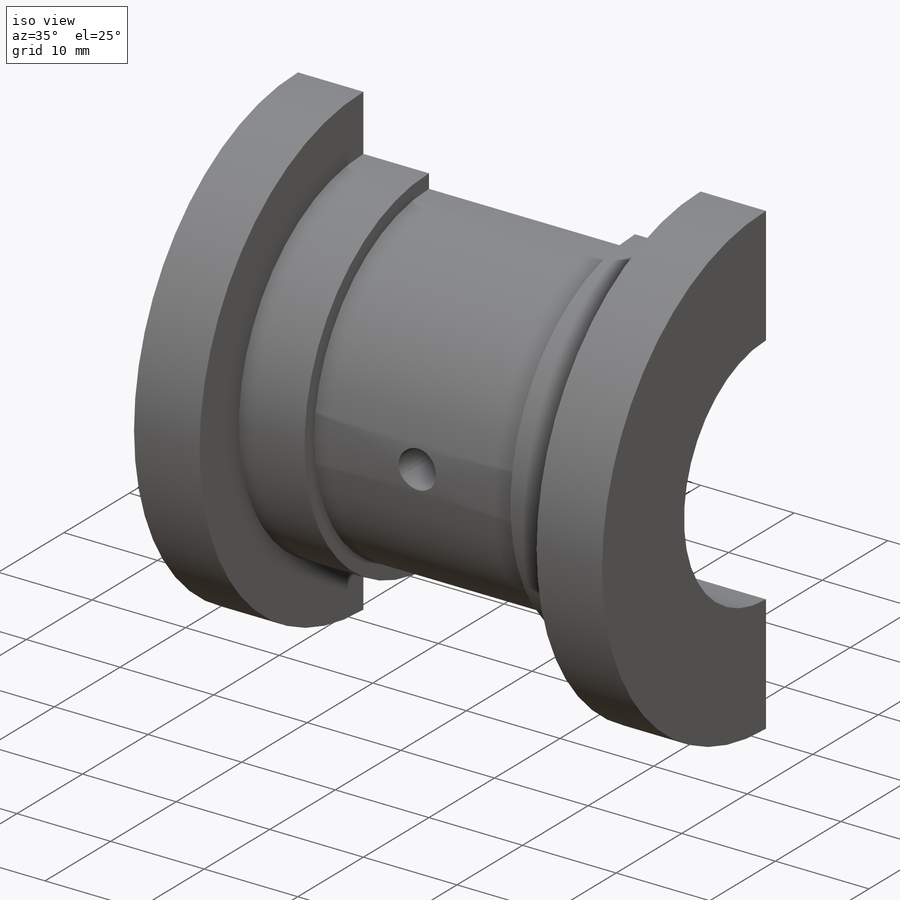
[diagram: iso view]
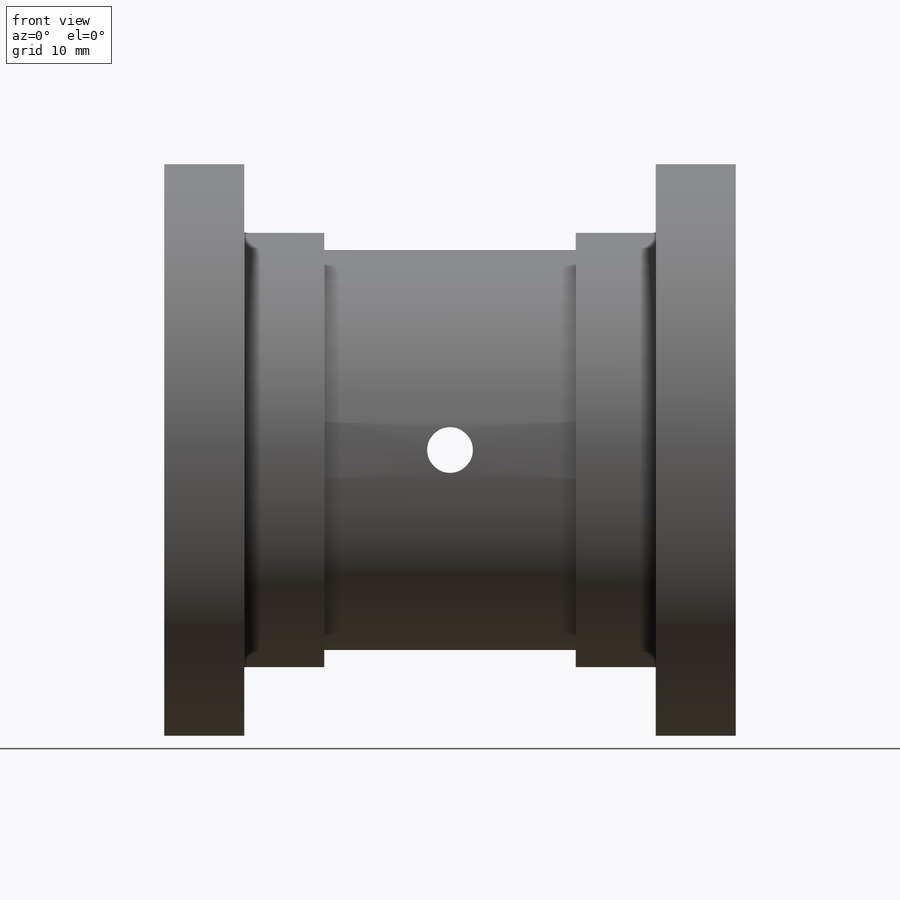
[diagram: front view]
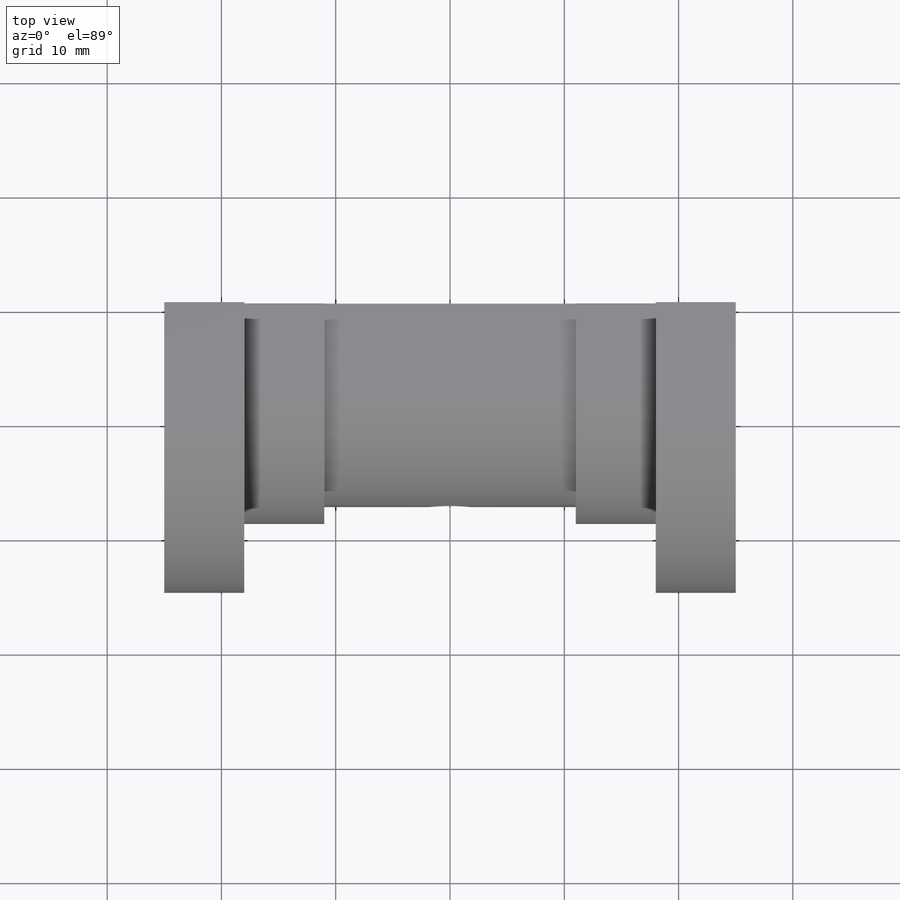
[diagram: top view]
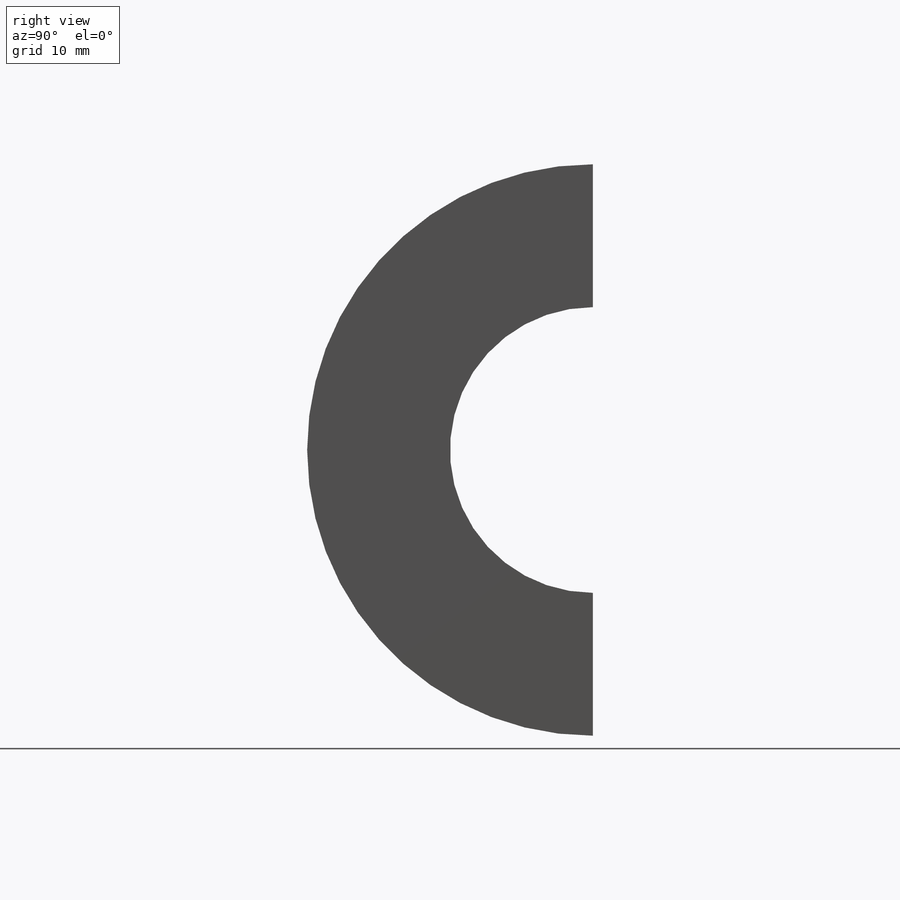
[diagram: right view]
SOLIDWORKS PART (.sldprt)
format: sldprt  version: not decoded by parser v0  size: 189,440 bytes
history: native  units: mm
features: sketch x3, cut_extrude x2, material x1, revolve x1, plane x1 (+13 scaffold rows collapsed)
feature tree (21):
  scaffold x13  (default folders/planes/origin — collapsed)
  material  "Material <not specified>"
  sketch  "Sketch1"  dims[D1=25.0mm D2=25.0mm D3=18.0mm D4=11.0mm D5=19.0mm D6=17.5mm]
  revolve  "Revolve1"  Angle=180deg
  sketch  "Sketch2"  dims[D1=~14.38966mm]
  cut_extrude  "Cut-Extrude3"  Depth=50mm
  plane  "Plane2"  Offset=17.5mm
  sketch  "Sketch4"  dims[D1=4.0mm]
  cut_extrude  "Cut-Extrude4"  Depth=43mm
decode coverage: 6 of 6 modeling features carry decoded parameters
note: ~ marks probable driven/reference dimensions
note: suppression state not decoded; provenance and decode notes live in map.json
